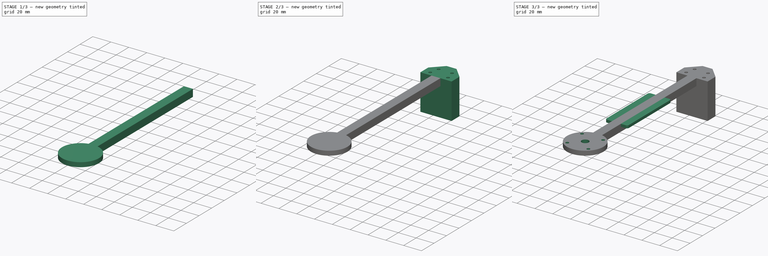
[diagram: build sequence overview — one tinted view per stage of 3, left to right]
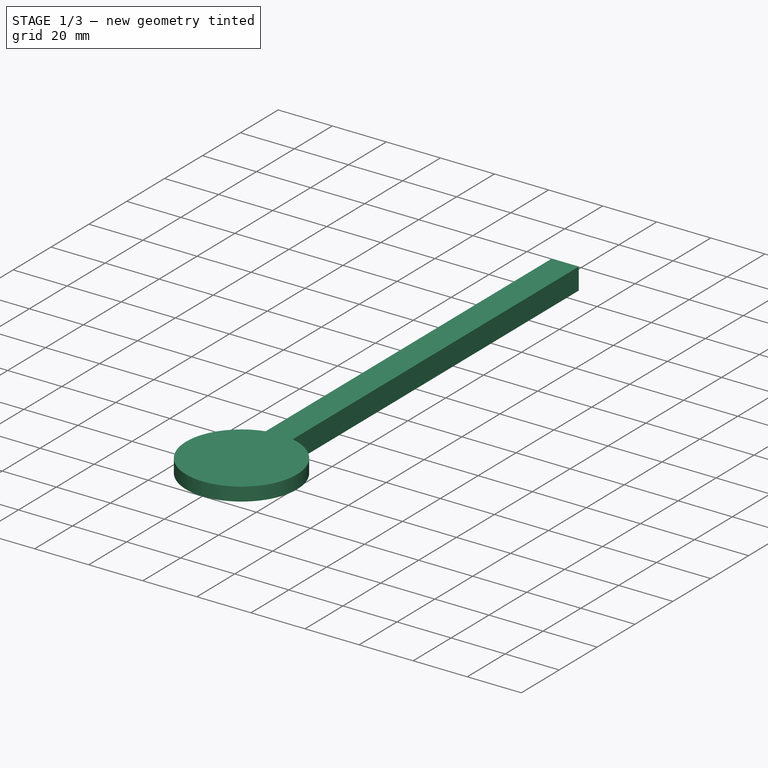
[diagram: stage 1 of 3 — iso view after this stage's code; geometry added in this stage tinted green]
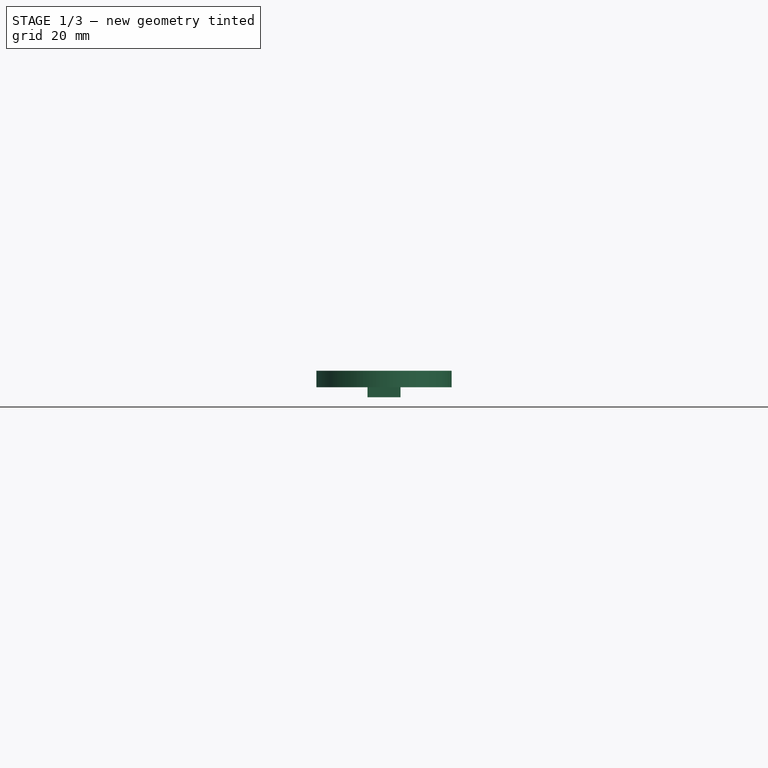
[diagram: stage 1 of 3 — front view after this stage's code; geometry added in this stage tinted green]
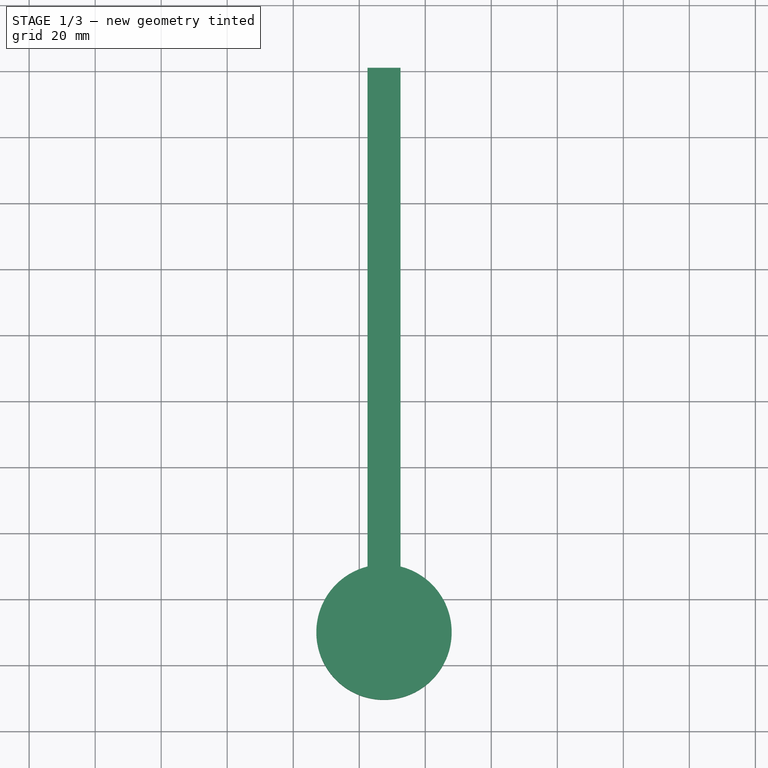
[diagram: stage 1 of 3 — top view after this stage's code; geometry added in this stage tinted green]
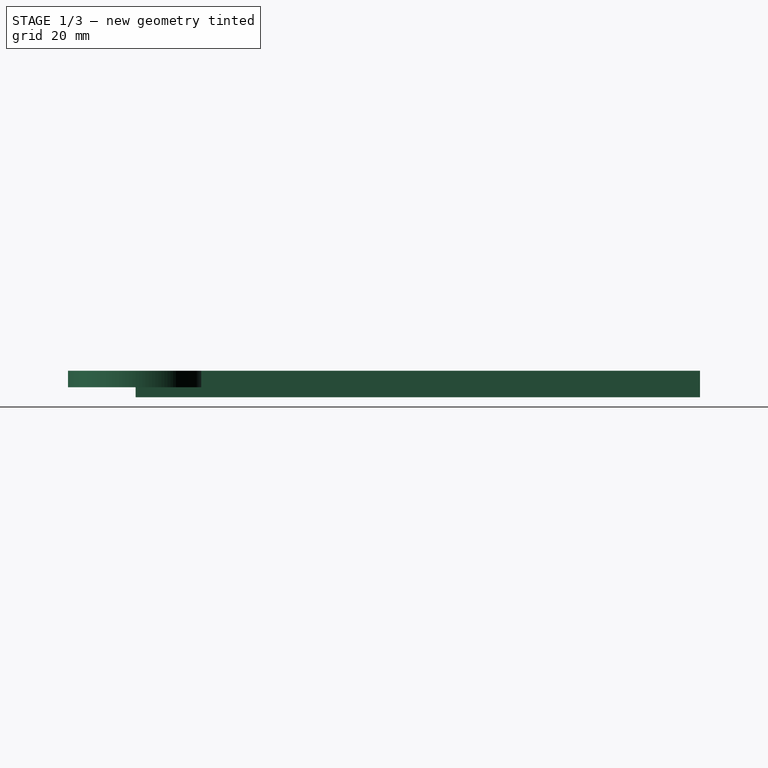
[diagram: stage 1 of 3 — right view after this stage's code; geometry added in this stage tinted green]
FCSTD DOCUMENT  (FreeCAD 1.0R39285 (Git))
Label: leg
License: All rights reserved
LicenseURL: http://en.wikipedia.org/wiki/All_rights_reserved
objects: Sketcher::SketchObject×6, PartDesign::Pad×4, Spreadsheet::Sheet×1, PartDesign::Hole×1, PartDesign::Pocket×1, PartDesign::Body×1
note: 31 computed .brp shape members not serialized (recipe doc carries the construction recipe); baked Part::Feature solids carry a one-line shape summary decoded from their .brp

FEATURE [Spreadsheet::Sheet] Spreadsheet
  cells = A1='offset_x; B1(offset_x)=50; A2='offset_y; B2(offset_y)=50; A3='offset_clamp_y; B3(offset_clamp_y)==offset_x + len; A4='len; B4(len)=171; A5='diag_width; B5(diag_width)=33.5
FEATURE [Sketcher::SketchObject] Sketch  label="base"
  ArcFitTolerance = 0
  AttachmentSupport = -> [XY_Plane]
  FullyConstrained = true
  MakeInternals = false
  MapMode = 5
  expr: Constraints[10] = Spreadsheet.len
  expr: Constraints[8] = Spreadsheet.offset_x + 12.5
  expr: Constraints[9] = Spreadsheet.offset_y
  sketch-geometry (4):
    g0: LineSegment StartX=62.5 StartY=221 StartZ=0 EndX=72.5 EndY=221 EndZ=0
    g1: LineSegment StartX=72.5 StartY=221 StartZ=0 EndX=72.5 EndY=50 EndZ=0
    g2: LineSegment StartX=72.5 StartY=50 StartZ=0 EndX=62.5 EndY=50 EndZ=0
    g3: LineSegment StartX=62.5 StartY=50 StartZ=0 EndX=62.5 EndY=221 EndZ=0
  constraints (12):
    c: Coincident(g0,g1)
    c: Coincident(g1,g2)
    c: Coincident(g2,g3)
    c: Coincident(g3,g0)
    c: Horizontal(g0)
    c: Horizontal(g2)
    c: Vertical(g1)
    c: Vertical(g3)
    c: DistanceX(g-1,g2) = 62.5
    c: DistanceY(g-1,g2) = 50
    c: DistanceY(g2,g0) = 171
    c: DistanceX(g2,g1) = 10
FEATURE [Sketcher::SketchObject] Sketch001  label="motor_holder"
  ArcFitTolerance = 0
  AttachmentSupport = -> [XY_Plane]
  FullyConstrained = true
  MakeInternals = false
  MapMode = 5
  expr: Constraints[1] = Spreadsheet.offset_y
  expr: Constraints[2] = 62.5 + 5
  sketch-geometry (1):
    g0: Circle CenterX=67.5 CenterY=50 CenterZ=0 NormalX=0 NormalY=0 NormalZ=1 AngleXU=0 Radius=20.5
  constraints (3):
    c: Diameter(g0) = 41
    c: DistanceY(g-1,g0) = 50
    c: DistanceX(g-1,g0) = 67.5
FEATURE [Sketcher::SketchObject] Sketch003  label="body_clamp"
  ArcFitTolerance = 0
  AttachmentSupport = -> [XY_Plane]
  FullyConstrained = true
  MakeInternals = false
  MapMode = 5
  expr: Constraints[10] = Spreadsheet.offset_x
  expr: Constraints[9] = Spreadsheet.offset_clamp_y
  sketch-geometry (10):
    g0: LineSegment StartX=50 StartY=221 StartZ=0 EndX=85 EndY=221 EndZ=0
    g1: LineSegment StartX=85 StartY=221 StartZ=0 EndX=85 EndY=233.131 EndZ=0
    g2: LineSegment StartX=84.648 StartY=234 StartZ=0 EndX=73.398 EndY=245.619 EndZ=0
    g3: LineSegment StartX=72.5 StartY=246 StartZ=0 EndX=62.5 EndY=246 EndZ=0
    g4: LineSegment StartX=61.602 StartY=245.619 StartZ=0 EndX=50.352 EndY=234 EndZ=0
    g5: LineSegment StartX=50 StartY=233.131 StartZ=0 EndX=50 EndY=221 EndZ=0
    g6: ArcOfCircle CenterX=51.25 CenterY=233.131 CenterZ=0 NormalX=0 NormalY=0 NormalZ=1 AngleXU=0 Radius=1.25 StartAngle=2.37235 EndAngle=3.14159
    g7: ArcOfCircle CenterX=83.75 CenterY=233.131 CenterZ=0 NormalX=0 NormalY=0 NormalZ=1 AngleXU=0 Radius=1.25 StartAngle=-1.07e-14 EndAngle=0.769243
    g8: ArcOfCircle CenterX=62.5 CenterY=244.75 CenterZ=0 NormalX=0 NormalY=0 NormalZ=1 AngleXU=0 Radius=1.25 StartAngle=1.5708 EndAngle=2.37235
    g9: ArcOfCircle CenterX=72.5 CenterY=244.75 CenterZ=0 NormalX=0 NormalY=0 NormalZ=1 AngleXU=0 Radius=1.25 StartAngle=0.769243 EndAngle=1.5708
  constraints (26):
    c: Horizontal(g0)
    c: Coincident(g0,g1)
    c: Vertical(g1)
    c: Horizontal(g3)
    c: Coincident(g5,g0)
    c: Vertical(g5)
    c: DistanceX(g0,g0) = 35
    c: Equal(g5,g1)
    c: Equal(g4,g2)
    c: DistanceY(g-1,g0) = 221
    c: DistanceX(g-1,g0) = 50
    c: Tangent(g5,g6) = -1.5708
    c: Tangent(g4,g6) = -1.5708
    c: Tangent(g2,g7) = -1.5708
    c: Tangent(g1,g7) = -1.5708
    c: Tangent(g4,g8) = -1.5708
    c: Tangent(g3,g8) = -1.5708
    c: Tangent(g3,g9) = -1.5708
    c: Tangent(g2,g9) = -1.5708
    c: Equal(g8,g9)
    c: Equal(g9,g7)
    c: Equal(g7,g6)
    c: Diameter(g6) = 2.5
    c: DistanceY(g0,g4) = 13
    c: DistanceY(g0,g3) = 25
    c: DistanceX(g8,g9) = 10
FEATURE [Sketcher::SketchObject] Sketch004  label="clamp_holes"
  ArcFitTolerance = 0
  AttachmentSupport = -> [XY_Plane]
  FullyConstrained = true
  MakeInternals = false
  MapMode = 5
  expr: Constraints[10] = Spreadsheet.offset_clamp_y + 15
  expr: Constraints[9] = Spreadsheet.offset_x + 10
  sketch-geometry (4):
    g0: Circle CenterX=57.5 CenterY=226 CenterZ=0 NormalX=0 NormalY=0 NormalZ=1 AngleXU=0 Radius=1.75
    g1: Circle CenterX=77.5 CenterY=226 CenterZ=0 NormalX=0 NormalY=0 NormalZ=1 AngleXU=0 Radius=1.75
    g2: Circle CenterX=75 CenterY=236 CenterZ=0 NormalX=0 NormalY=0 NormalZ=1 AngleXU=0 Radius=1.75
    g3: Circle CenterX=60 CenterY=236 CenterZ=0 NormalX=0 NormalY=0 NormalZ=1 AngleXU=0 Radius=1.75
  constraints (12):
    c: Horizontal(g0,g1)
    c: Horizontal(g3,g2)
    c: DistanceY(g0,g3) = 10
    c: Diameter(g0) = 3.5
    c: DistanceX(g3,g2) = 15
    c: DistanceX(g0,g1) = 20
    c: Equal(g1,g2)
    c: Equal(g2,g3)
    c: Equal(g3,g0)
    c: DistanceX(g-1,g3) = 60
    c: DistanceY(g-1,g3) = 236
    c: DistanceX(g3,g0) = -2.5
FEATURE [PartDesign::Pad] Pad
  Direction = (0,0,1)
  Length = 8
  Length2 = 10
  Profile = -> Sketch
  ReferenceAxis = -> Sketch [N_Axis]
  Reversed = true
  Suppressed = false
  Type = 0
FEATURE [PartDesign::Pad] Pad001
  BaseFeature = -> Pad
  Direction = (0,0,1)
  Length = 5
  Length2 = 10
  Profile = -> Sketch001
  ReferenceAxis = -> Sketch001 [N_Axis]
  Reversed = true
  Suppressed = false
  Type = 0
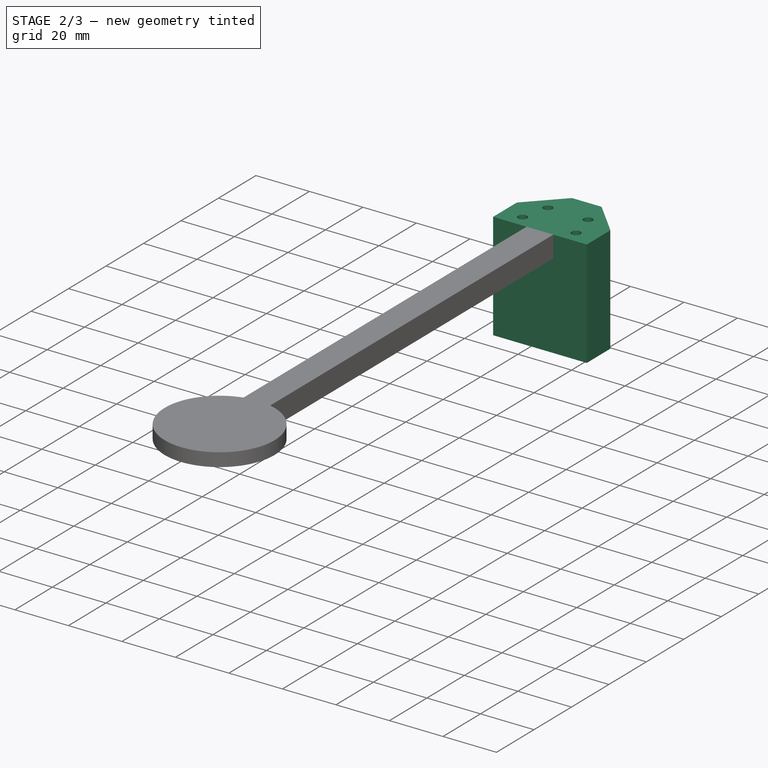
[diagram: stage 2 of 3 — iso view after this stage's code; geometry added in this stage tinted green]
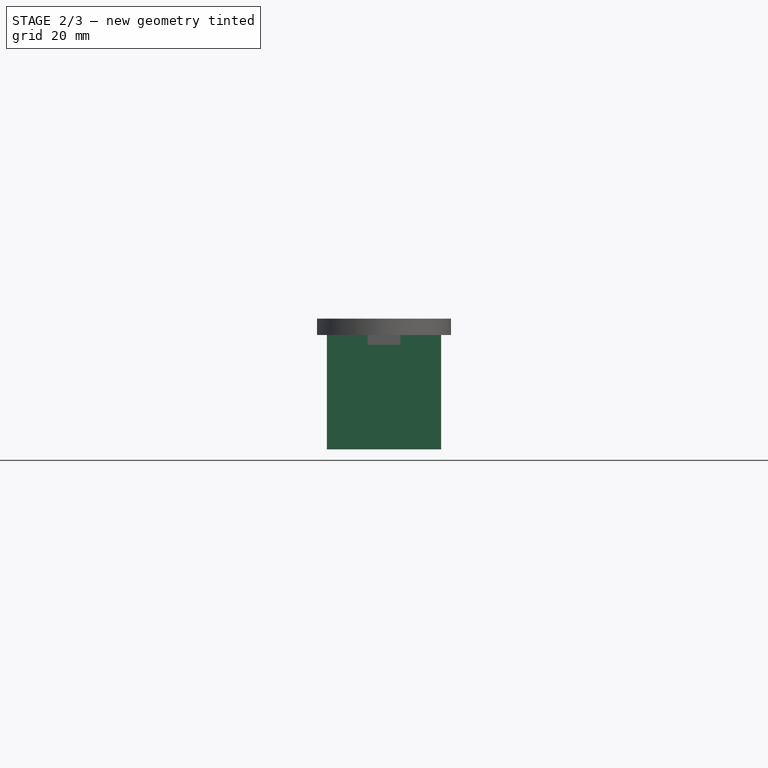
[diagram: stage 2 of 3 — front view after this stage's code; geometry added in this stage tinted green]
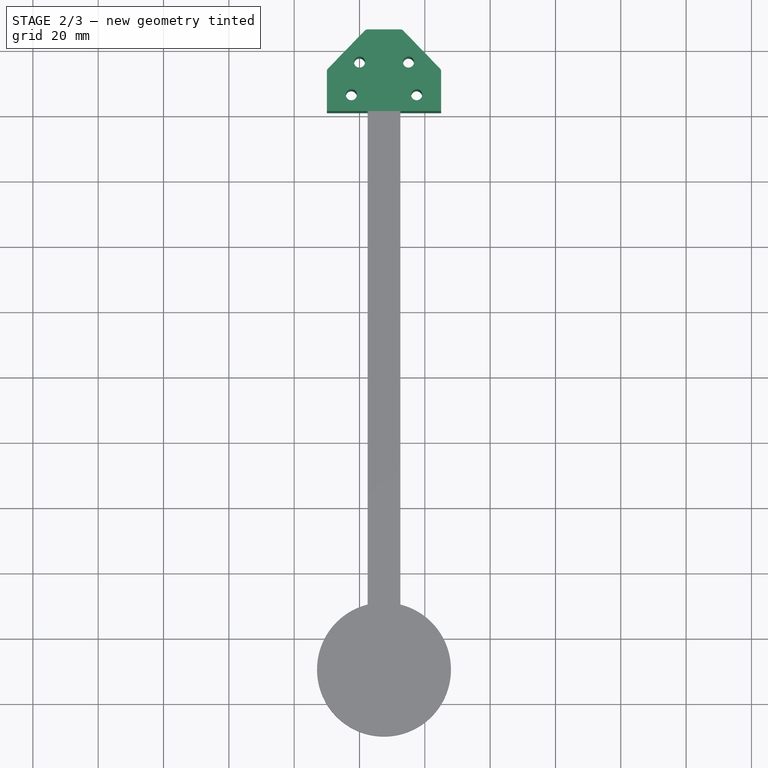
[diagram: stage 2 of 3 — top view after this stage's code; geometry added in this stage tinted green]
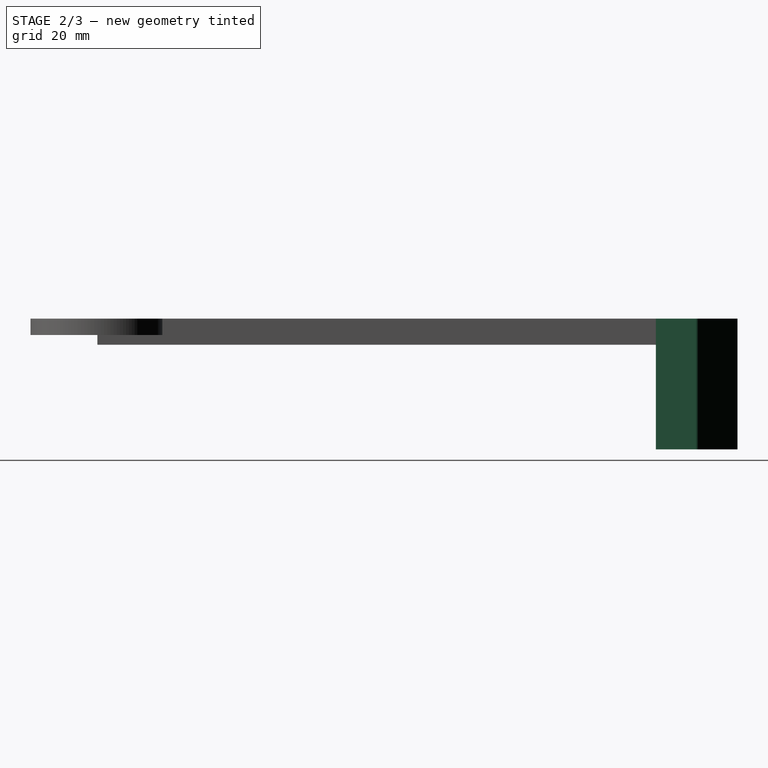
[diagram: stage 2 of 3 — right view after this stage's code; geometry added in this stage tinted green]
FEATURE [PartDesign::Pad] Pad002
  BaseFeature = -> Pad001
  Direction = (0,0,1)
  Length = 40
  Length2 = 10
  Profile = -> Sketch003
  ReferenceAxis = -> Sketch003 [N_Axis]
  Reversed = true
  Suppressed = false
  Type = 0
FEATURE [PartDesign::Hole] Hole
  BaseFeature = -> Pad002
  CustomThreadClearance = 0
  Depth = 464.546
  DepthType = 1
  Diameter = 3.4
  DrillForDepth = false
  DrillPoint = 1
  DrillPointAngle = 118
  HoleCutCountersinkAngle = 90
  HoleCutCustomValues = false
  HoleCutDepth = 0
  HoleCutDiameter = 6.1
  HoleCutType = 0
  ModelThread = false
  Profile = -> Sketch004
  Suppressed = false
  Tapered = false
  TaperedAngle = 90
  ThreadClass = 0
  ThreadDepth = 464.546
  ThreadDepthType = 0
  ThreadDirection = 0
  ThreadFit = 0
  ThreadSize = 9
  ThreadType = 1
  Threaded = false
  UseCustomThreadClearance = false
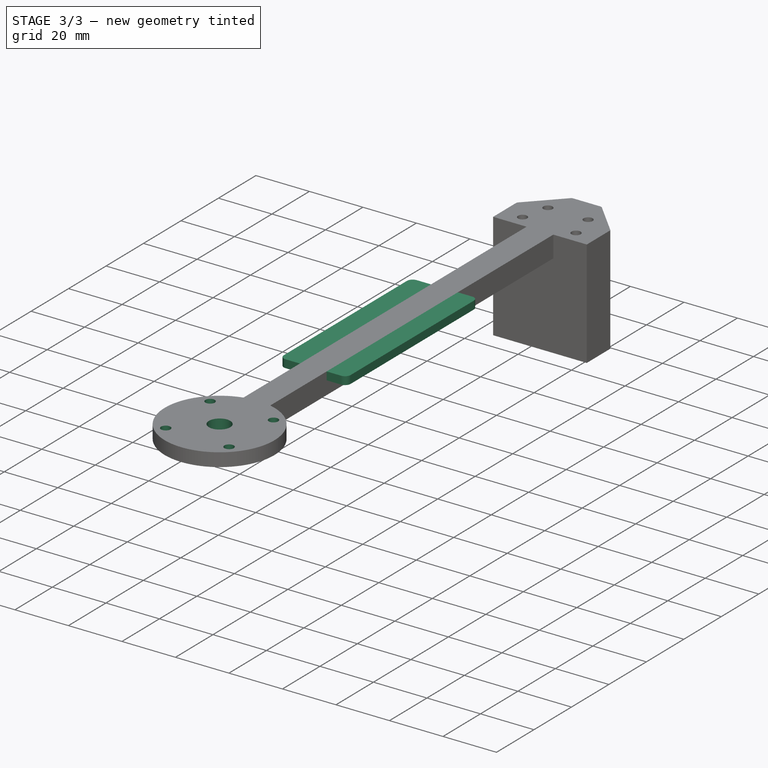
[diagram: stage 3 of 3 — iso view after this stage's code; geometry added in this stage tinted green]
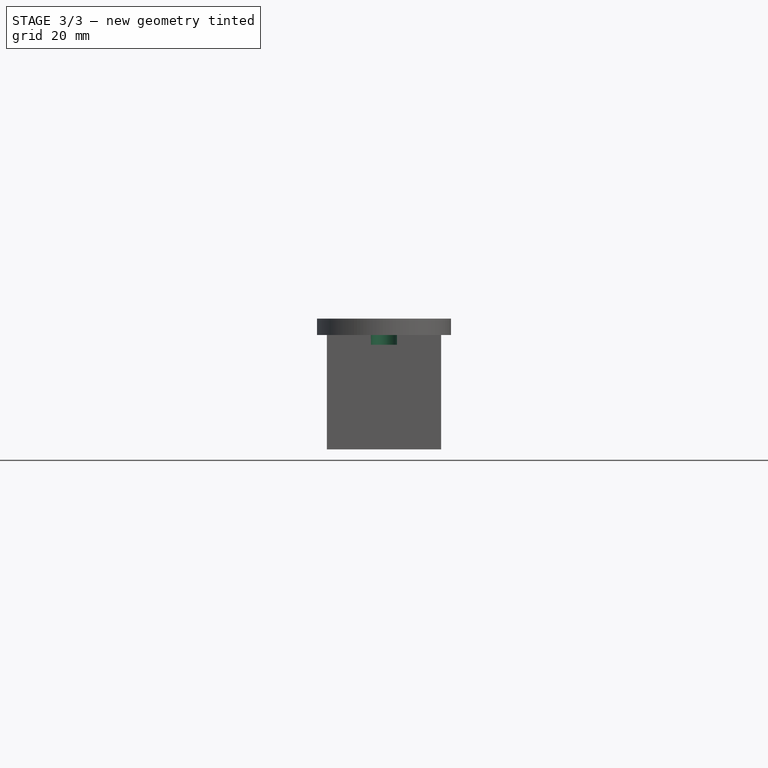
[diagram: stage 3 of 3 — front view after this stage's code; geometry added in this stage tinted green]
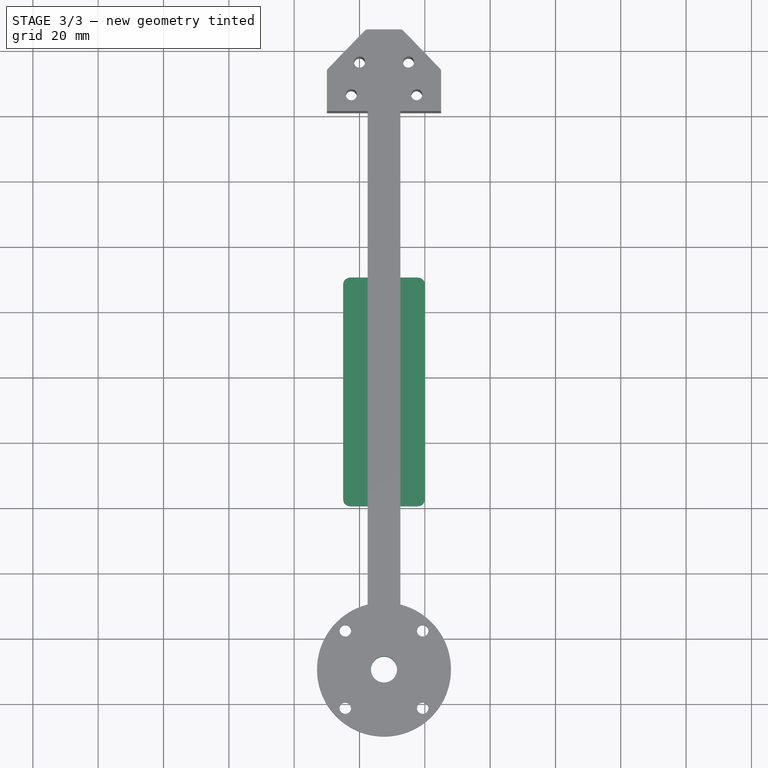
[diagram: stage 3 of 3 — top view after this stage's code; geometry added in this stage tinted green]
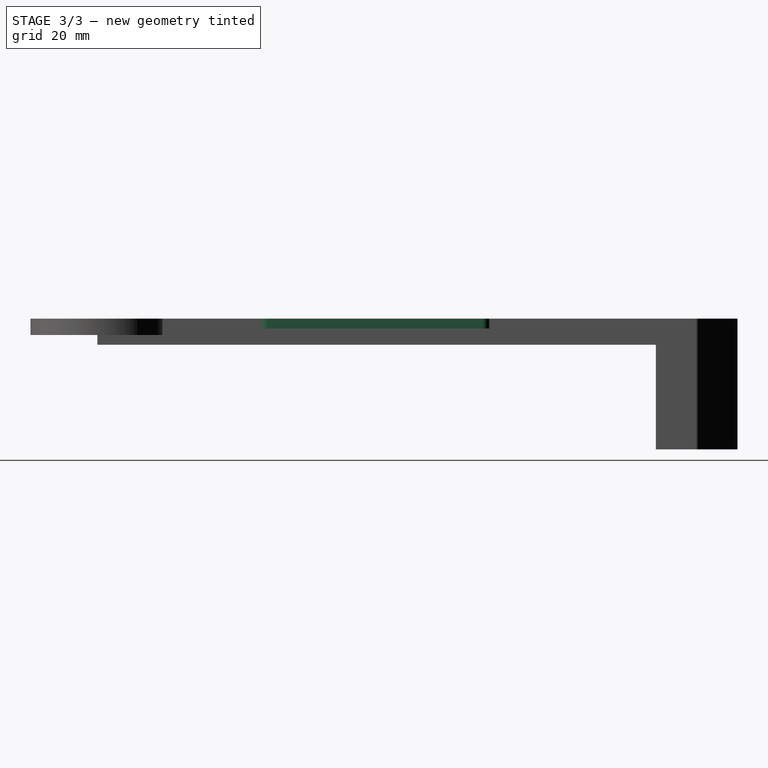
[diagram: stage 3 of 3 — right view after this stage's code; geometry added in this stage tinted green]
FEATURE [Sketcher::SketchObject] Sketch005  label="ECS_mount"
  ArcFitTolerance = 1e-06
  AttachmentSupport = -> [XY_Plane]
  FullyConstrained = true
  MakeInternals = false
  MapMode = 5
  sketch-geometry (12):
    g0: LineSegment StartX=55 StartY=167.879 StartZ=0 EndX=55 EndY=102.121 EndZ=0
    g1: LineSegment StartX=57.1213 StartY=100 StartZ=0 EndX=77.8787 EndY=100 EndZ=0
    g2: LineSegment StartX=80 StartY=102.121 StartZ=0 EndX=80 EndY=167.879 EndZ=0
    g3: LineSegment StartX=77.8787 StartY=170 StartZ=0 EndX=57.1213 EndY=170 EndZ=0
    g4: ArcOfCircle CenterX=57.1213 CenterY=102.121 CenterZ=0 NormalX=0 NormalY=0 NormalZ=1 AngleXU=0 Radius=2.12132 StartAngle=3.14159 EndAngle=4.71239
    g5: GeomPoint [constr] X=55 Y=100 Z=0
    g6: ArcOfCircle CenterX=77.8787 CenterY=102.121 CenterZ=0 NormalX=0 NormalY=0 NormalZ=1 AngleXU=0 Radius=2.12132 StartAngle=4.71239 EndAngle=6.28319
    g7: GeomPoint [constr] X=80 Y=100 Z=0
    g8: ArcOfCircle CenterX=77.8787 CenterY=167.879 CenterZ=0 NormalX=0 NormalY=0 NormalZ=1 AngleXU=0 Radius=2.12132 StartAngle=1.2e-15 EndAngle=1.5708
    g9: GeomPoint [constr] X=80 Y=170 Z=0
    g10: ArcOfCircle CenterX=57.1213 CenterY=167.879 CenterZ=0 NormalX=0 NormalY=0 NormalZ=1 AngleXU=0 Radius=2.12132 StartAngle=1.5708 EndAngle=3.14159
    g11: GeomPoint [constr] X=55 Y=170 Z=0
  constraints (28):
    c: Vertical(g0)
    c: Vertical(g2)
    c: Horizontal(g1)
    c: Horizontal(g3)
    c: PointOnObject(g5,g0)
    c: PointOnObject(g5,g1)
    c: Tangent(g0,g4) = -1.5708
    c: Tangent(g1,g4) = -1.5708
    c: PointOnObject(g7,g1)
    c: PointOnObject(g7,g2)
    c: Tangent(g1,g6) = -1.5708
    c: Tangent(g2,g6) = -1.5708
    c: PointOnObject(g9,g3)
    c: PointOnObject(g9,g2)
    c: Tangent(g3,g8) = -1.5708
    c: Tangent(g2,g8) = -1.5708
    c: PointOnObject(g11,g3)
    c: PointOnObject(g11,g0)
    c: Tangent(g3,g10) = -1.5708
    c: Tangent(g0,g10) = -1.5708
    c: Distance(g0,g3) = 3
    c: Equal(g10,g8)
    c: Equal(g8,g4)
    c: Equal(g4,g6)
    c: DistanceY(g7,g9) = 70
    c: DistanceX(g11,g9) = 25
    c: DistanceY(g-1,g5) = 100
    c: DistanceX(g-1,g5) = 55
FEATURE [PartDesign::Pad] Pad003
  BaseFeature = -> Hole
  Direction = (0,0,1)
  Length = 3
  Length2 = 10
  Profile = -> Sketch005
  ReferenceAxis = -> Sketch005 [N_Axis]
  Reversed = true
  Suppressed = false
  Type = 0
FEATURE [Sketcher::SketchObject] Sketch006  label="engine_holes"
  ArcFitTolerance = 1e-06
  AttachmentSupport = -> [XY_Plane]
  FullyConstrained = true
  MakeInternals = false
  MapMode = 5
  expr: Constraints[10] = Spreadsheet.diag_width / 2
  expr: Constraints[11] = Spreadsheet.diag_width / 2
  expr: Constraints[12] = sqrt(Spreadsheet.diag_width / 2 * Spreadsheet.diag_width / 2 * 2)
  expr: Constraints[6] = 62.5 + 5
  expr: Constraints[9] = Spreadsheet.diag_width
  sketch-geometry (5):
    g0: Circle CenterX=79.344 CenterY=38.156 CenterZ=0 NormalX=0 NormalY=0 NormalZ=1 AngleXU=0 Radius=1.75
    g1: Circle CenterX=79.344 CenterY=61.844 CenterZ=0 NormalX=0 NormalY=0 NormalZ=1 AngleXU=0 Radius=1.75
    g2: Circle CenterX=55.656 CenterY=61.844 CenterZ=0 NormalX=0 NormalY=0 NormalZ=1 AngleXU=0 Radius=1.75
    g3: Circle CenterX=55.656 CenterY=38.156 CenterZ=0 NormalX=0 NormalY=0 NormalZ=1 AngleXU=0 Radius=1.75
    g4: Circle CenterX=67.5 CenterY=50 CenterZ=0 NormalX=0 NormalY=0 NormalZ=1 AngleXU=0 Radius=4
  constraints (15):
    c: Diameter(g3) = 3.5
    c: Equal(g2,g3)
    c: Equal(g3,g0)
    c: Equal(g0,g1)
    c: Diameter(g4) = 8
    c: DistanceY(g-1,g4) = 50
    c: DistanceX(g-1,g4) = 67.5
    c: Vertical(g1,g0)
    c: Horizontal(g2,g1)
    c: Distance(g3,g1) = 33.5
    c: Distance(g4,g2) = 16.75
    c: Distance(g4,g1) = 16.75
    c: DistanceX(g3,g0) = 23.6881
    c: Vertical(g2,g3)
    c: Horizontal(g0,g3)
FEATURE [PartDesign::Pocket] Pocket
  BaseFeature = -> Pad003
  Direction = (0,0,-1)
  Length = 5
  Length2 = 5
  Profile = -> Sketch006
  ReferenceAxis = -> Sketch006 [N_Axis]
  Suppressed = false
  Type = 1
FEATURE [PartDesign::Body] Body
  AllowCompound = false
  Group = -> [Sketch,Sketch001,Sketch003,Sketch004,Pad,Pad001,Pad002,Hole,Sketch005,Pad003,Sketch006,Pocket]
  Origin = -> Origin
  Tip = -> Pocket
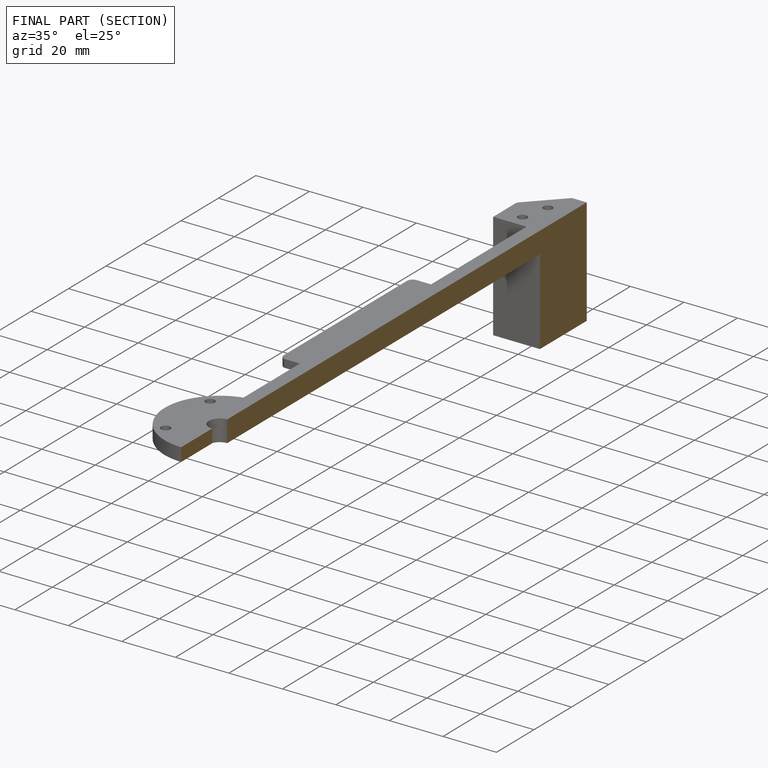
[diagram: finished part — half-section view (interior)]
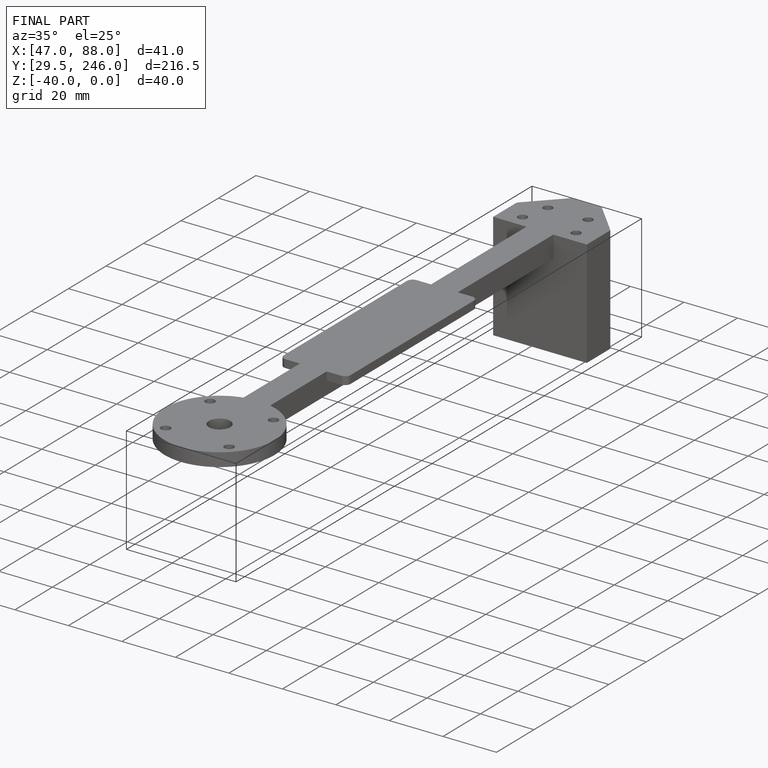
[diagram: finished part — iso view with bounding-box wireframe]
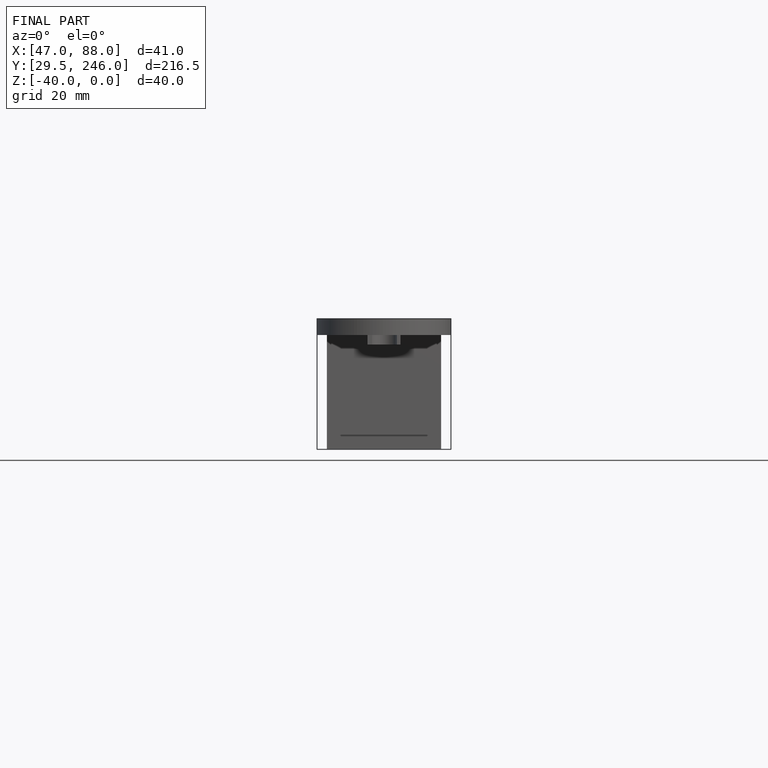
[diagram: finished part — front view with bounding-box wireframe]
